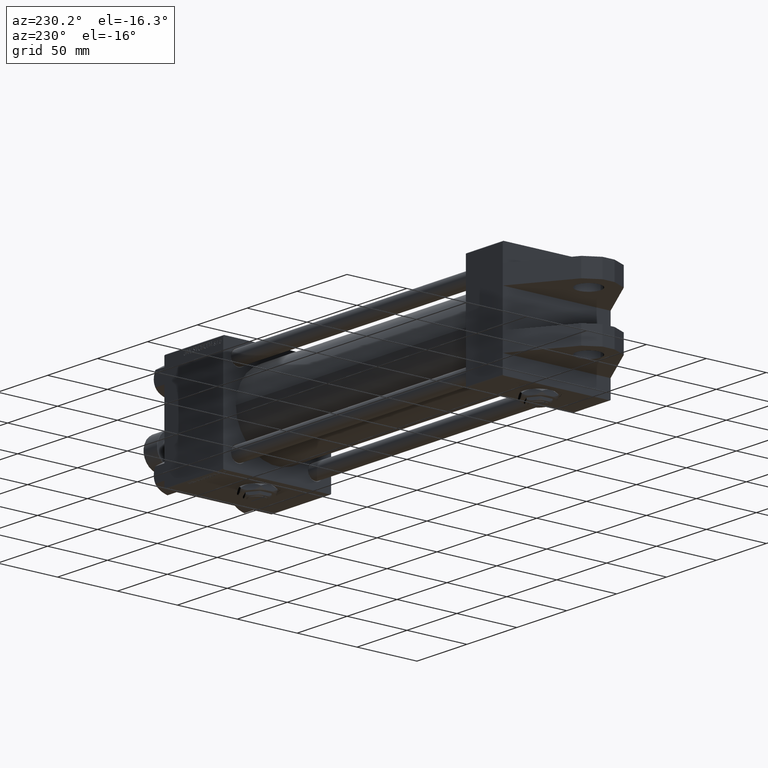
[diagram: clean part render]
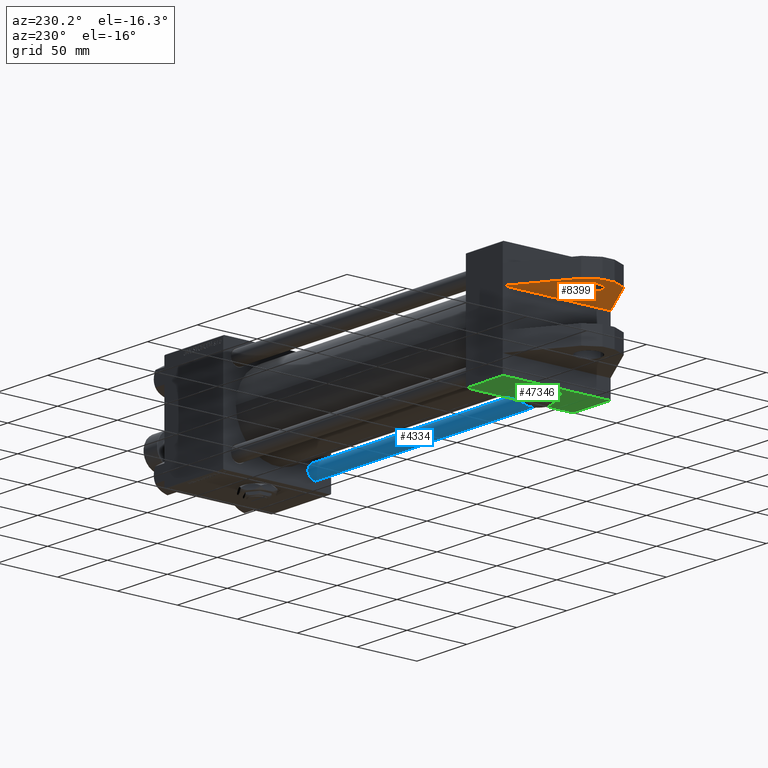
[diagram: same view with three faces highlighted in distinct colors, each labeled with its STEP entity id]
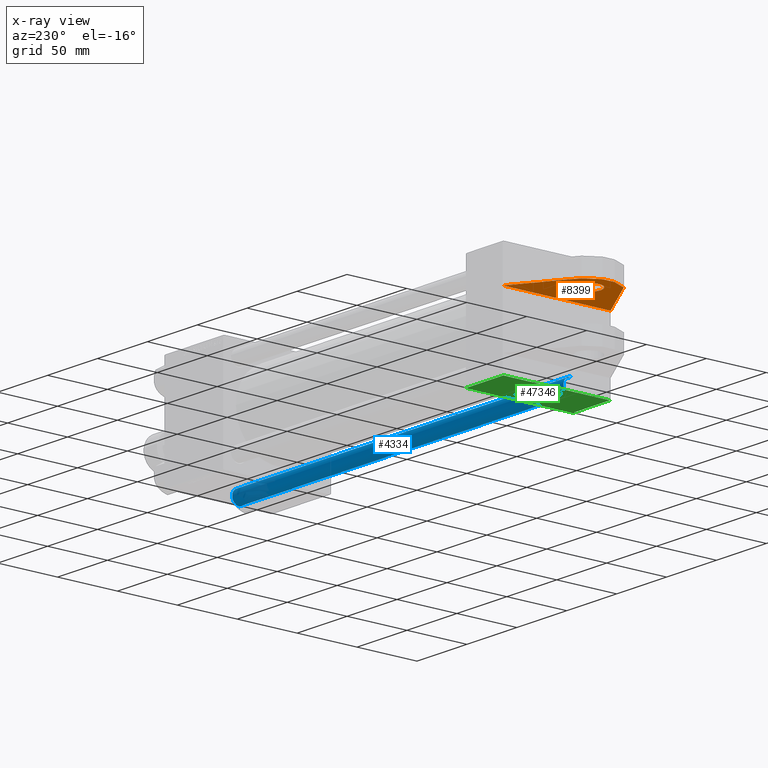
[diagram: x-ray of the same camera — body ghosted, the three highlighted faces saturated]
A machine part, auxiliary view with three faces highlighted in distinct colors.
The next image is the same camera in x-ray (body ghosted, the three faces saturated) — at least one of them is partly hidden behind the body in this view.
Their STEP definitions:

[orange] entity #8399 — the highlighted planar face has unit normal (0, 0, 1).
#705 = PLANE ( 'NONE',  #41674 ) ;
#1788 = CIRCLE ( 'NONE', #11961, 10.00000000000000000 ) ;
#1798 = VERTEX_POINT ( 'NONE', #8537 ) ;
#3435 = DIRECTION ( 'NONE',  ( 0.8478744008358545248, 0.000000000000000000, 0.5301971335335947666 ) ) ;
#4145 = CARTESIAN_POINT ( 'NONE',  ( -52.00000000000000711, -15.00000000000000000, 5.000000000000000000 ) ) ;
#4436 = DIRECTION ( 'NONE',  ( 0.000000000000000000, 0.000000000000000000, 1.000000000000000000 ) ) ;
#4856 = VECTOR ( 'NONE', #5385, 999.9999999999998863 ) ;
#5175 = FACE_OUTER_BOUND ( 'NONE', #24637, .T. ) ;
#5385 = DIRECTION ( 'NONE',  ( 0.5111096117992851573, 0.000000000000000000, 0.8595155407125482094 ) ) ;
#7462 = DIRECTION ( 'NONE',  ( 0.000000000000000000, 0.000000000000000000, 1.000000000000000000 ) ) ;
#7550 = EDGE_CURVE ( 'NONE', #35078, #8641, #24402, .T. ) ;
#8399 = ADVANCED_FACE ( 'NONE', ( #20805, #5175 ), #705, .F. ) ;
#8537 = CARTESIAN_POINT ( 'NONE',  ( -44.91602078046192048, -15.00000000000000000, 16.91288539427591431 ) ) ;
#8641 = VERTEX_POINT ( 'NONE', #49010 ) ;
#9620 = VERTEX_POINT ( 'NONE', #39514 ) ;
#10071 = CARTESIAN_POINT ( 'NONE',  ( -52.00000000000000711, -15.00000000000000000, 5.000000000000000000 ) ) ;
#11836 = CARTESIAN_POINT ( 'NONE',  ( 0.000000000000000000, -15.00000000000000000, 45.00000000000000000 ) ) ;
#11961 = AXIS2_PLACEMENT_3D ( 'NONE', #32076, #14910, #27581 ) ;
#12093 = EDGE_CURVE ( 'NONE', #13195, #30445, #24915, .T. ) ;
#12876 = DIRECTION ( 'NONE',  ( 0.000000000000000000, -1.000000000000000000, 0.000000000000000000 ) ) ;
#13013 = DIRECTION ( 'NONE',  ( -0.8595155407125480984, 0.000000000000000000, 0.5111096117992853793 ) ) ;
#13195 = VERTEX_POINT ( 'NONE', #40200 ) ;
#14722 = EDGE_CURVE ( 'NONE', #8641, #9620, #15598, .T. ) ;
#14910 = DIRECTION ( 'NONE',  ( -0.000000000000000000, 1.000000000000000000, -0.000000000000000000 ) ) ;
#15234 = VECTOR ( 'NONE', #27948, 1000.000000000000000 ) ;
#15503 = VECTOR ( 'NONE', #4436, 1000.000000000000000 ) ;
#15598 = LINE ( 'NONE', #48616, #27519 ) ;
#15793 = ORIENTED_EDGE ( 'NONE', *, *, #36063, .F. ) ;
#18362 = LINE ( 'NONE', #39676, #36580 ) ;
#20805 = FACE_BOUND ( 'NONE', #21242, .T. ) ;
#21242 = EDGE_LOOP ( 'NONE', ( #15793, #41399 ) ) ;
#21657 = ORIENTED_EDGE ( 'NONE', *, *, #41658, .T. ) ;
#21716 = CARTESIAN_POINT ( 'NONE',  ( -46.14251089227400371, -15.00000000000000000, -17.56142592832800631 ) ) ;
#22988 = CARTESIAN_POINT ( 'NONE',  ( -32.00000000000000000, -15.00000000000000000, 10.00000000000000000 ) ) ;
#23018 = CARTESIAN_POINT ( 'NONE',  ( 0.000000000000000000, -15.00000000000000000, -45.00000000000000000 ) ) ;
#23447 = EDGE_CURVE ( 'NONE', #43156, #1798, #35902, .T. ) ;
#24402 = LINE ( 'NONE', #21716, #40779 ) ;
#24637 = EDGE_LOOP ( 'NONE', ( #35817, #47113, #47578, #26815, #49839, #21657 ) ) ;
#24915 = CIRCLE ( 'NONE', #35043, 10.00000000000000000 ) ;
#26815 = ORIENTED_EDGE ( 'NONE', *, *, #7550, .T. ) ;
#27519 = VECTOR ( 'NONE', #35957, 1000.000000000000227 ) ;
#27572 = DIRECTION ( 'NONE',  ( -0.000000000000000000, 1.000000000000000000, -0.000000000000000000 ) ) ;
#27581 = DIRECTION ( 'NONE',  ( 0.000000000000000000, 0.000000000000000000, 1.000000000000000000 ) ) ;
#27948 = DIRECTION ( 'NONE',  ( 0.000000000000000000, 0.000000000000000000, -1.000000000000000000 ) ) ;
#30445 = VERTEX_POINT ( 'NONE', #22988 ) ;
#32003 = VERTEX_POINT ( 'NONE', #37940 ) ;
#32076 = CARTESIAN_POINT ( 'NONE',  ( -32.00000000000000000, -15.00000000000000000, 0.000000000000000000 ) ) ;
#32492 = LINE ( 'NONE', #44371, #15503 ) ;
#32972 = CARTESIAN_POINT ( 'NONE',  ( 0.000000000000000000, -15.00000000000000000, 0.000000000000000000 ) ) ;
#34662 = EDGE_CURVE ( 'NONE', #32003, #35078, #48021, .T. ) ;
#35043 = AXIS2_PLACEMENT_3D ( 'NONE', #39464, #27572, #7462 ) ;
#35078 = VERTEX_POINT ( 'NONE', #23018 ) ;
#35817 = ORIENTED_EDGE ( 'NONE', *, *, #23447, .T. ) ;
#35902 = LINE ( 'NONE', #4145, #4856 ) ;
#35957 = DIRECTION ( 'NONE',  ( -0.4226182617406930020, 0.000000000000000000, 0.9063077870366529343 ) ) ;
#36063 = EDGE_CURVE ( 'NONE', #30445, #13195, #1788, .T. ) ;
#36580 = VECTOR ( 'NONE', #3435, 1000.000000000000114 ) ;
#37940 = CARTESIAN_POINT ( 'NONE',  ( 0.000000000000000000, -15.00000000000000000, 45.00000000000000000 ) ) ;
#39464 = CARTESIAN_POINT ( 'NONE',  ( -32.00000000000000000, -15.00000000000000000, 0.000000000000000000 ) ) ;
#39514 = CARTESIAN_POINT ( 'NONE',  ( -52.00000000000000711, -15.00000000000000000, -5.000000000000000000 ) ) ;
#39676 = CARTESIAN_POINT ( 'NONE',  ( -44.91602078046192048, -15.00000000000000000, 16.91288539427591431 ) ) ;
#40200 = CARTESIAN_POINT ( 'NONE',  ( -32.00000000000000000, -15.00000000000000000, -10.00000000000000000 ) ) ;
#40779 = VECTOR ( 'NONE', #13013, 999.9999999999998863 ) ;
#41053 = EDGE_CURVE ( 'NONE', #1798, #32003, #18362, .T. ) ;
#41399 = ORIENTED_EDGE ( 'NONE', *, *, #12093, .F. ) ;
#41658 = EDGE_CURVE ( 'NONE', #9620, #43156, #32492, .T. ) ;
#41674 = AXIS2_PLACEMENT_3D ( 'NONE', #32972, #12876, #49332 ) ;
#43156 = VERTEX_POINT ( 'NONE', #10071 ) ;
#44371 = CARTESIAN_POINT ( 'NONE',  ( -52.00000000000000711, -15.00000000000000000, -5.000000000000000000 ) ) ;
#47113 = ORIENTED_EDGE ( 'NONE', *, *, #41053, .T. ) ;
#47578 = ORIENTED_EDGE ( 'NONE', *, *, #34662, .T. ) ;
#48021 = LINE ( 'NONE', #11836, #15234 ) ;
#48616 = CARTESIAN_POINT ( 'NONE',  ( -52.00000000000000711, -15.00000000000000000, -5.000000000000000000 ) ) ;
#49010 = CARTESIAN_POINT ( 'NONE',  ( -46.14251089227400371, -15.00000000000000000, -17.56142592832800631 ) ) ;
#49332 = DIRECTION ( 'NONE',  ( 0.000000000000000000, 0.000000000000000000, 1.000000000000000000 ) ) ;
#49839 = ORIENTED_EDGE ( 'NONE', *, *, #14722, .T. ) ;

[blue] entity #4334 — the highlighted cylindrical surface (edge-blend (fillet) strip) has radius 6 mm, axis along (-1, -0, 0).
#3111 = VECTOR ( 'NONE', #34069, 1000.000000000000000 ) ;
#4334 = ADVANCED_FACE ( 'NONE', ( #24182 ), #44771, .T. ) ;
#5288 = CARTESIAN_POINT ( 'NONE',  ( -6.000000000000000888, 0.000000000000000000, 333.0000000000000000 ) ) ;
#6538 = DIRECTION ( 'NONE',  ( 0.000000000000000000, 0.000000000000000000, -1.000000000000000000 ) ) ;
#7193 = EDGE_CURVE ( 'NONE', #16816, #40363, #39895, .T. ) ;
#9880 = VERTEX_POINT ( 'NONE', #36287 ) ;
#11097 = EDGE_LOOP ( 'NONE', ( #24999, #51187, #41312, #41679 ) ) ;
#16764 = DIRECTION ( 'NONE',  ( -0.000000000000000000, -0.000000000000000000, -1.000000000000000000 ) ) ;
#16816 = VERTEX_POINT ( 'NONE', #20827 ) ;
#20115 = EDGE_CURVE ( 'NONE', #16816, #45496, #41224, .T. ) ;
#20827 = CARTESIAN_POINT ( 'NONE',  ( 6.000000000000000888, 7.347880794884120722E-16, 332.5000000000001137 ) ) ;
#21905 = CARTESIAN_POINT ( 'NONE',  ( 6.000000000000000888, 7.347880794884120722E-16, 333.0000000000000000 ) ) ;
#22677 = DIRECTION ( 'NONE',  ( 1.000000000000000000, 0.000000000000000000, 0.000000000000000000 ) ) ;
#24182 = FACE_OUTER_BOUND ( 'NONE', #11097, .T. ) ;
#24906 = LINE ( 'NONE', #5288, #42152 ) ;
#24999 = ORIENTED_EDGE ( 'NONE', *, *, #20115, .F. ) ;
#27368 = EDGE_CURVE ( 'NONE', #40363, #9880, #24906, .T. ) ;
#27681 = CARTESIAN_POINT ( 'NONE',  ( 0.000000000000000000, 0.000000000000000000, 332.5000000000001137 ) ) ;
#28094 = AXIS2_PLACEMENT_3D ( 'NONE', #27681, #6538, #22677 ) ;
#28845 = DIRECTION ( 'NONE',  ( -0.000000000000000000, -0.000000000000000000, -1.000000000000000000 ) ) ;
#32624 = AXIS2_PLACEMENT_3D ( 'NONE', #39487, #35015, #51111 ) ;
#32897 = DIRECTION ( 'NONE',  ( -1.000000000000000000, 0.000000000000000000, 0.000000000000000000 ) ) ;
#34069 = DIRECTION ( 'NONE',  ( -0.000000000000000000, -0.000000000000000000, -1.000000000000000000 ) ) ;
#35015 = DIRECTION ( 'NONE',  ( -0.000000000000000000, -0.000000000000000000, 1.000000000000000000 ) ) ;
#36186 = CARTESIAN_POINT ( 'NONE',  ( -6.000000000000000888, 0.000000000000000000, 332.5000000000001137 ) ) ;
#36287 = CARTESIAN_POINT ( 'NONE',  ( -6.000000000000000888, 0.000000000000000000, 0.5000000000000004441 ) ) ;
#39487 = CARTESIAN_POINT ( 'NONE',  ( 0.000000000000000000, 0.000000000000000000, 0.5000000000000004441 ) ) ;
#39895 = CIRCLE ( 'NONE', #28094, 6.000000000000000888 ) ;
#40363 = VERTEX_POINT ( 'NONE', #36186 ) ;
#40976 = CARTESIAN_POINT ( 'NONE',  ( 6.000000000000000888, 7.347880794884120722E-16, 0.5000000000000004441 ) ) ;
#41224 = LINE ( 'NONE', #21905, #3111 ) ;
#41312 = ORIENTED_EDGE ( 'NONE', *, *, #27368, .T. ) ;
#41645 = AXIS2_PLACEMENT_3D ( 'NONE', #48468, #16764, #32897 ) ;
#41679 = ORIENTED_EDGE ( 'NONE', *, *, #48120, .T. ) ;
#42152 = VECTOR ( 'NONE', #28845, 1000.000000000000000 ) ;
#44538 = CIRCLE ( 'NONE', #32624, 6.000000000000000888 ) ;
#44771 = CYLINDRICAL_SURFACE ( 'NONE', #41645, 6.000000000000000888 ) ;
#45496 = VERTEX_POINT ( 'NONE', #40976 ) ;
#48120 = EDGE_CURVE ( 'NONE', #9880, #45496, #44538, .T. ) ;
#48468 = CARTESIAN_POINT ( 'NONE',  ( 0.000000000000000000, 0.000000000000000000, 333.0000000000000000 ) ) ;
#51111 = DIRECTION ( 'NONE',  ( 1.000000000000000000, 0.000000000000000000, 0.000000000000000000 ) ) ;
#51187 = ORIENTED_EDGE ( 'NONE', *, *, #7193, .T. ) ;

[green] entity #47346 — the highlighted planar face has unit normal (0, 0, -1).
#1898 = FACE_OUTER_BOUND ( 'NONE', #49026, .T. ) ;
#4036 = EDGE_CURVE ( 'NONE', #40593, #46267, #44573, .T. ) ;
#5262 = EDGE_CURVE ( 'NONE', #16399, #13644, #12029, .T. ) ;
#5286 = VECTOR ( 'NONE', #51069, 1000.000000000000000 ) ;
#6235 = ORIENTED_EDGE ( 'NONE', *, *, #15255, .T. ) ;
#6412 = EDGE_CURVE ( 'NONE', #31768, #50078, #38924, .T. ) ;
#7430 = DIRECTION ( 'NONE',  ( 0.000000000000000000, 0.000000000000000000, -1.000000000000000000 ) ) ;
#7638 = ORIENTED_EDGE ( 'NONE', *, *, #17849, .F. ) ;
#9592 = CARTESIAN_POINT ( 'NONE',  ( 37.00000000000000000, 44.99999999999998579, 45.00000000000001421 ) ) ;
#9943 = VECTOR ( 'NONE', #7430, 1000.000000000000000 ) ;
#10659 = VECTOR ( 'NONE', #32327, 1000.000000000000000 ) ;
#11091 = DIRECTION ( 'NONE',  ( 0.000000000000000000, 1.000000000000000000, 0.000000000000000000 ) ) ;
#11709 = LINE ( 'NONE', #43934, #10659 ) ;
#12029 = CIRCLE ( 'NONE', #44921, 15.00000000000000178 ) ;
#12358 = AXIS2_PLACEMENT_3D ( 'NONE', #22735, #11091, #26185 ) ;
#13297 = FACE_BOUND ( 'NONE', #16893, .T. ) ;
#13458 = ORIENTED_EDGE ( 'NONE', *, *, #5262, .F. ) ;
#13644 = VERTEX_POINT ( 'NONE', #34291 ) ;
#15255 = EDGE_CURVE ( 'NONE', #46267, #31768, #11709, .T. ) ;
#16399 = VERTEX_POINT ( 'NONE', #21403 ) ;
#16893 = EDGE_LOOP ( 'NONE', ( #35008, #13458 ) ) ;
#17516 = PLANE ( 'NONE',  #21610 ) ;
#17568 = ORIENTED_EDGE ( 'NONE', *, *, #6412, .T. ) ;
#17792 = DIRECTION ( 'NONE',  ( 0.000000000000000000, 0.000000000000000000, 1.000000000000000000 ) ) ;
#17827 = ORIENTED_EDGE ( 'NONE', *, *, #4036, .T. ) ;
#17849 = EDGE_CURVE ( 'NONE', #40593, #50078, #31771, .T. ) ;
#18063 = EDGE_CURVE ( 'NONE', #13644, #16399, #19208, .T. ) ;
#19208 = CIRCLE ( 'NONE', #12358, 15.00000000000000178 ) ;
#19982 = CARTESIAN_POINT ( 'NONE',  ( 37.00000000000000000, 44.99999999999998579, 44.50000000000001421 ) ) ;
#21403 = CARTESIAN_POINT ( 'NONE',  ( 18.50000000000000355, 44.99999999999998579, -15.00000000000000178 ) ) ;
#21503 = CARTESIAN_POINT ( 'NONE',  ( 18.50000000000000000, 44.99999999999998579, 0.000000000000000000 ) ) ;
#21610 = AXIS2_PLACEMENT_3D ( 'NONE', #9592, #33137, #34163 ) ;
#22735 = CARTESIAN_POINT ( 'NONE',  ( 18.50000000000000000, 44.99999999999998579, 0.000000000000000000 ) ) ;
#24116 = CARTESIAN_POINT ( 'NONE',  ( 0.000000000000000000, 44.99999999999998579, 45.00000000000001421 ) ) ;
#25157 = CARTESIAN_POINT ( 'NONE',  ( 37.00000000000000000, 44.99999999999998579, -44.49999999999995737 ) ) ;
#26185 = DIRECTION ( 'NONE',  ( 0.000000000000000000, 0.000000000000000000, 1.000000000000000000 ) ) ;
#28312 = CARTESIAN_POINT ( 'NONE',  ( 0.000000000000000000, 44.99999999999998579, -44.49999999999995737 ) ) ;
#31768 = VERTEX_POINT ( 'NONE', #25157 ) ;
#31771 = LINE ( 'NONE', #24116, #9943 ) ;
#32327 = DIRECTION ( 'NONE',  ( 0.000000000000000000, 0.000000000000000000, -1.000000000000000000 ) ) ;
#33137 = DIRECTION ( 'NONE',  ( -0.000000000000000000, 1.000000000000000000, 0.000000000000000000 ) ) ;
#34163 = DIRECTION ( 'NONE',  ( 0.000000000000000000, -0.000000000000000000, 1.000000000000000000 ) ) ;
#34291 = CARTESIAN_POINT ( 'NONE',  ( 18.50000000000000000, 44.99999999999998579, 15.00000000000000178 ) ) ;
#34970 = CARTESIAN_POINT ( 'NONE',  ( 37.00000000000000000, 44.99999999999998579, -44.49999999999998579 ) ) ;
#35008 = ORIENTED_EDGE ( 'NONE', *, *, #18063, .F. ) ;
#37634 = DIRECTION ( 'NONE',  ( 0.000000000000000000, 1.000000000000000000, 0.000000000000000000 ) ) ;
#38262 = CARTESIAN_POINT ( 'NONE',  ( 0.000000000000000000, 44.99999999999998579, 44.50000000000001421 ) ) ;
#38924 = LINE ( 'NONE', #34970, #5286 ) ;
#40349 = DIRECTION ( 'NONE',  ( 1.000000000000000000, 0.000000000000000000, 0.000000000000000000 ) ) ;
#40593 = VERTEX_POINT ( 'NONE', #38262 ) ;
#42475 = VECTOR ( 'NONE', #40349, 1000.000000000000000 ) ;
#43934 = CARTESIAN_POINT ( 'NONE',  ( 37.00000000000000000, 44.99999999999998579, 45.00000000000001421 ) ) ;
#44573 = LINE ( 'NONE', #19982, #42475 ) ;
#44921 = AXIS2_PLACEMENT_3D ( 'NONE', #21503, #37634, #17792 ) ;
#46267 = VERTEX_POINT ( 'NONE', #48765 ) ;
#47346 = ADVANCED_FACE ( 'NONE', ( #13297, #1898 ), #17516, .T. ) ;
#48765 = CARTESIAN_POINT ( 'NONE',  ( 37.00000000000000000, 44.99999999999998579, 44.50000000000001421 ) ) ;
#49026 = EDGE_LOOP ( 'NONE', ( #6235, #17568, #7638, #17827 ) ) ;
#50078 = VERTEX_POINT ( 'NONE', #28312 ) ;
#51069 = DIRECTION ( 'NONE',  ( -1.000000000000000000, 0.000000000000000000, 0.000000000000000000 ) ) ;